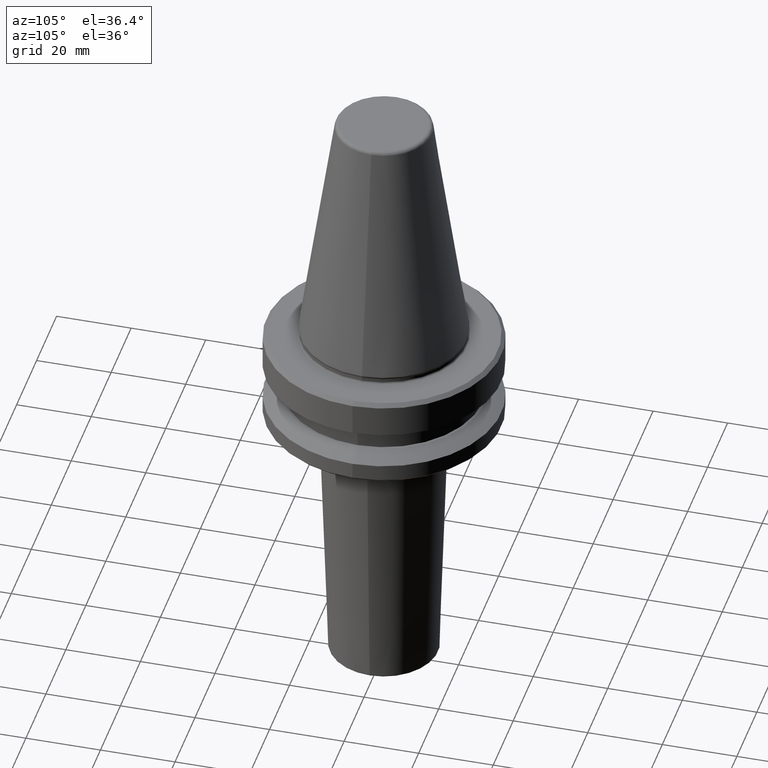
[diagram: clean part render]
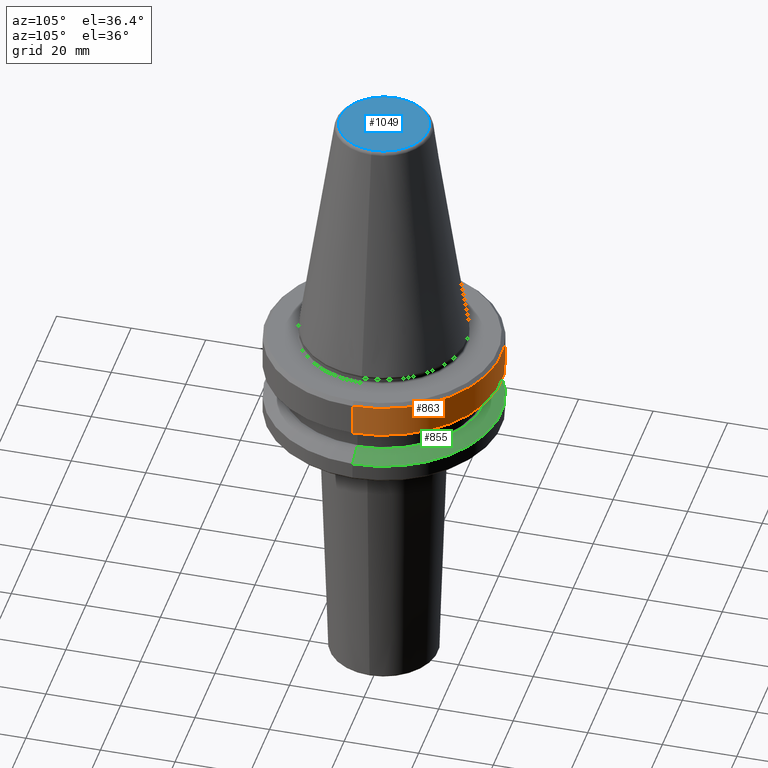
[diagram: same view with three faces highlighted in distinct colors, each labeled with its STEP entity id]
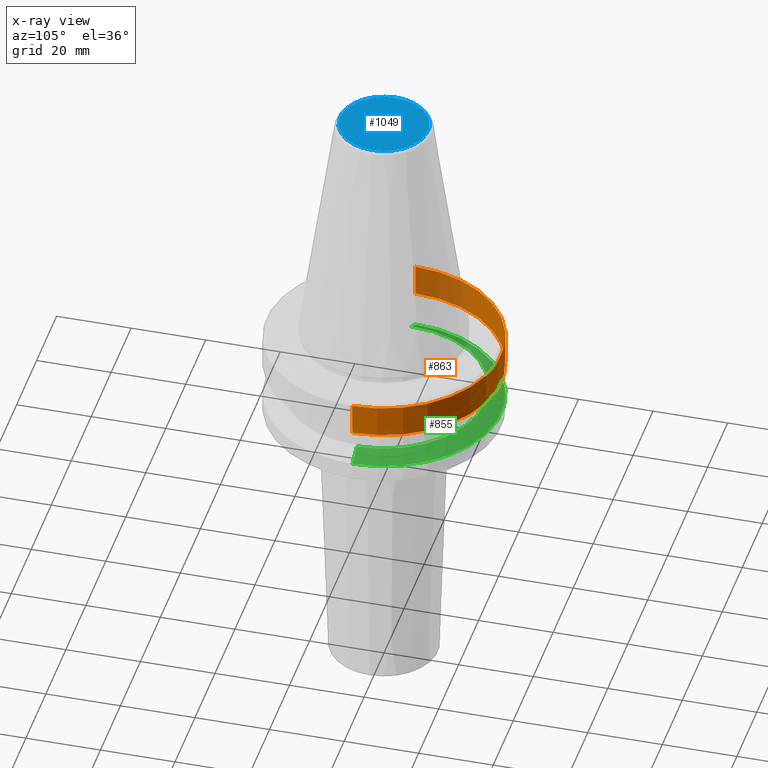
[diagram: x-ray of the same camera — body ghosted, the three highlighted faces saturated]
A machine part, auxiliary view with three faces highlighted in distinct colors.
The next image is the same camera in x-ray (body ghosted, the three faces saturated) — at least one of them is partly hidden behind the body in this view.
Their STEP definitions:

[orange] entity #863 — the highlighted cylindrical surface (partial cylindrical patch) has radius 31.5 mm, axis along (-0, -0, 1).
#34 = EDGE_CURVE ( 'NONE', #937, #657, #811, .T. ) ;
#61 = CARTESIAN_POINT ( 'NONE',  ( -31.50000000000008500, 3.857637417314172900E-015, 6.357346922996331500 ) ) ;
#65 = EDGE_CURVE ( 'NONE', #992, #718, #156, .T. ) ;
#77 = EDGE_CURVE ( 'NONE', #657, #718, #540, .T. ) ;
#156 = LINE ( 'NONE', #61, #331 ) ;
#166 = CARTESIAN_POINT ( 'NONE',  ( -31.50000000000008500, 3.857637417314172900E-015, -68.40000000000046000 ) ) ;
#264 = CYLINDRICAL_SURFACE ( 'NONE', #295, 31.50000000000008500 ) ;
#295 = AXIS2_PLACEMENT_3D ( 'NONE', #750, #435, #999 ) ;
#300 = DIRECTION ( 'NONE',  ( -0.0000000000000000000, -0.0000000000000000000, 1.000000000000000000 ) ) ;
#331 = VECTOR ( 'NONE', #789, 1000.000000000000000 ) ;
#333 = AXIS2_PLACEMENT_3D ( 'NONE', #880, #389, #956 ) ;
#366 = CARTESIAN_POINT ( 'NONE',  ( -31.50000000000008500, 3.857637417314172900E-015, -76.99985799368391800 ) ) ;
#389 = DIRECTION ( 'NONE',  ( -0.0000000000000000000, -0.0000000000000000000, 1.000000000000000000 ) ) ;
#430 = EDGE_CURVE ( 'NONE', #937, #992, #545, .T. ) ;
#435 = DIRECTION ( 'NONE',  ( -0.0000000000000000000, -0.0000000000000000000, 1.000000000000000000 ) ) ;
#463 = DIRECTION ( 'NONE',  ( -0.0000000000000000000, -0.0000000000000000000, 1.000000000000000000 ) ) ;
#468 = ORIENTED_EDGE ( 'NONE', *, *, #430, .T. ) ;
#526 = EDGE_LOOP ( 'NONE', ( #468, #683, #577, #705 ) ) ;
#531 = CARTESIAN_POINT ( 'NONE',  ( 31.50000000000008500, 0.0000000000000000000, 6.357346922996331500 ) ) ;
#540 = CIRCLE ( 'NONE', #764, 31.50000000000008500 ) ;
#545 = CIRCLE ( 'NONE', #333, 31.50000000000008500 ) ;
#566 = VECTOR ( 'NONE', #300, 1000.000000000000000 ) ;
#577 = ORIENTED_EDGE ( 'NONE', *, *, #77, .F. ) ;
#657 = VERTEX_POINT ( 'NONE', #770 ) ;
#662 = FACE_OUTER_BOUND ( 'NONE', #526, .T. ) ;
#683 = ORIENTED_EDGE ( 'NONE', *, *, #65, .T. ) ;
#705 = ORIENTED_EDGE ( 'NONE', *, *, #34, .F. ) ;
#718 = VERTEX_POINT ( 'NONE', #166 ) ;
#750 = CARTESIAN_POINT ( 'NONE',  ( 0.0000000000000000000, 0.0000000000000000000, 6.357346922996331500 ) ) ;
#764 = AXIS2_PLACEMENT_3D ( 'NONE', #942, #463, #1025 ) ;
#770 = CARTESIAN_POINT ( 'NONE',  ( 31.50000000000008500, 0.0000000000000000000, -68.40000000000046000 ) ) ;
#789 = DIRECTION ( 'NONE',  ( -0.0000000000000000000, -0.0000000000000000000, 1.000000000000000000 ) ) ;
#811 = LINE ( 'NONE', #531, #566 ) ;
#852 = CARTESIAN_POINT ( 'NONE',  ( 31.50000000000008500, 0.0000000000000000000, -76.99985799368391800 ) ) ;
#863 = ADVANCED_FACE ( 'NONE', ( #662 ), #264, .T. ) ;
#880 = CARTESIAN_POINT ( 'NONE',  ( 0.0000000000000000000, 0.0000000000000000000, -76.99985799368391800 ) ) ;
#937 = VERTEX_POINT ( 'NONE', #852 ) ;
#942 = CARTESIAN_POINT ( 'NONE',  ( 0.0000000000000000000, 0.0000000000000000000, -68.40000000000046000 ) ) ;
#956 = DIRECTION ( 'NONE',  ( 1.000000000000000000, 0.0000000000000000000, 0.0000000000000000000 ) ) ;
#992 = VERTEX_POINT ( 'NONE', #366 ) ;
#999 = DIRECTION ( 'NONE',  ( 1.000000000000000000, 0.0000000000000000000, 0.0000000000000000000 ) ) ;
#1025 = DIRECTION ( 'NONE',  ( 1.000000000000000000, 0.0000000000000000000, 0.0000000000000000000 ) ) ;

[blue] entity #1049 — the highlighted planar face has unit normal (0, 0, -1).
#131 = ORIENTED_EDGE ( 'NONE', *, *, #998, .T. ) ;
#204 = CARTESIAN_POINT ( 'NONE',  ( 11.82266927716813000, 0.0000000000000000000, -4.440892098500626200E-013 ) ) ;
#231 = CARTESIAN_POINT ( 'NONE',  ( 0.0000000000000000000, 0.0000000000000000000, -4.440892098500626200E-013 ) ) ;
#303 = CARTESIAN_POINT ( 'NONE',  ( 0.0000000000000000000, 0.0000000000000000000, -4.440892098500626200E-013 ) ) ;
#317 = DIRECTION ( 'NONE',  ( 1.000000000000000000, 0.0000000000000000000, 0.0000000000000000000 ) ) ;
#319 = CARTESIAN_POINT ( 'NONE',  ( -11.82266927716813000, 1.508450817090336800E-015, -4.440892098500626200E-013 ) ) ;
#356 = PLANE ( 'NONE',  #986 ) ;
#369 = CIRCLE ( 'NONE', #666, 11.82266927716813000 ) ;
#372 = EDGE_LOOP ( 'NONE', ( #810, #131 ) ) ;
#375 = DIRECTION ( 'NONE',  ( 1.000000000000000000, 0.0000000000000000000, 0.0000000000000000000 ) ) ;
#441 = DIRECTION ( 'NONE',  ( 0.0000000000000000000, 0.0000000000000000000, -1.000000000000000000 ) ) ;
#442 = VERTEX_POINT ( 'NONE', #319 ) ;
#497 = EDGE_CURVE ( 'NONE', #627, #442, #763, .T. ) ;
#521 = FACE_OUTER_BOUND ( 'NONE', #372, .T. ) ;
#627 = VERTEX_POINT ( 'NONE', #204 ) ;
#653 = AXIS2_PLACEMENT_3D ( 'NONE', #231, #798, #317 ) ;
#666 = AXIS2_PLACEMENT_3D ( 'NONE', #303, #864, #375 ) ;
#763 = CIRCLE ( 'NONE', #653, 11.82266927716813000 ) ;
#798 = DIRECTION ( 'NONE',  ( -0.0000000000000000000, -0.0000000000000000000, 1.000000000000000000 ) ) ;
#810 = ORIENTED_EDGE ( 'NONE', *, *, #497, .T. ) ;
#864 = DIRECTION ( 'NONE',  ( -0.0000000000000000000, -0.0000000000000000000, 1.000000000000000000 ) ) ;
#916 = CARTESIAN_POINT ( 'NONE',  ( 0.0000000000000000000, 0.0000000000000000000, -4.440892098500626200E-013 ) ) ;
#986 = AXIS2_PLACEMENT_3D ( 'NONE', #916, #441, #1002 ) ;
#998 = EDGE_CURVE ( 'NONE', #442, #627, #369, .T. ) ;
#1002 = DIRECTION ( 'NONE',  ( -1.000000000000000000, 0.0000000000000000000, -0.0000000000000000000 ) ) ;
#1049 = ADVANCED_FACE ( 'NONE', ( #521 ), #356, .F. ) ;

[green] entity #855 — the highlighted conical surface has half-angle 60 deg.
#7 = CARTESIAN_POINT ( 'NONE',  ( -31.50000000000008500, 3.857637417314172900E-015, -87.00014200631733300 ) ) ;
#9 = CONICAL_SURFACE ( 'NONE', #71, 31.50000000000008500, 1.047197551196587000 ) ;
#37 = FACE_OUTER_BOUND ( 'NONE', #573, .T. ) ;
#71 = AXIS2_PLACEMENT_3D ( 'NONE', #670, #186, #508 ) ;
#102 = CARTESIAN_POINT ( 'NONE',  ( -27.16962701892256100, 0.0000000000000000000, -84.50000000000068200 ) ) ;
#118 = CIRCLE ( 'NONE', #819, 31.50000000000008500 ) ;
#139 = CARTESIAN_POINT ( 'NONE',  ( 31.50000000000008500, 0.0000000000000000000, -87.00014200631733300 ) ) ;
#186 = DIRECTION ( 'NONE',  ( 0.0000000000000000000, 0.0000000000000000000, -1.000000000000000000 ) ) ;
#194 = VERTEX_POINT ( 'NONE', #139 ) ;
#201 = DIRECTION ( 'NONE',  ( 0.8660254037844332700, 1.060575238724900300E-016, -0.5000000000000093300 ) ) ;
#205 = CARTESIAN_POINT ( 'NONE',  ( 0.0000000000000000000, 0.0000000000000000000, -84.50000000000068200 ) ) ;
#208 = ORIENTED_EDGE ( 'NONE', *, *, #212, .F. ) ;
#212 = EDGE_CURVE ( 'NONE', #821, #432, #841, .T. ) ;
#266 = EDGE_CURVE ( 'NONE', #674, #821, #429, .T. ) ;
#298 = DIRECTION ( 'NONE',  ( 1.000000000000000000, 0.0000000000000000000, 0.0000000000000000000 ) ) ;
#320 = ORIENTED_EDGE ( 'NONE', *, *, #266, .F. ) ;
#322 = CARTESIAN_POINT ( 'NONE',  ( 0.0000000000000000000, 0.0000000000000000000, -87.00014200631733300 ) ) ;
#392 = DIRECTION ( 'NONE',  ( 1.000000000000000000, 0.0000000000000000000, 0.0000000000000000000 ) ) ;
#429 = CIRCLE ( 'NONE', #509, 27.16962701892256100 ) ;
#432 = VERTEX_POINT ( 'NONE', #7 ) ;
#508 = DIRECTION ( 'NONE',  ( -1.000000000000000000, 0.0000000000000000000, 0.0000000000000000000 ) ) ;
#509 = AXIS2_PLACEMENT_3D ( 'NONE', #205, #771, #298 ) ;
#535 = CARTESIAN_POINT ( 'NONE',  ( 27.16962701892256100, 3.592478546794633900E-015, -84.50000000000068200 ) ) ;
#550 = EDGE_CURVE ( 'NONE', #194, #432, #118, .T. ) ;
#573 = EDGE_LOOP ( 'NONE', ( #320, #813, #699, #208 ) ) ;
#615 = EDGE_CURVE ( 'NONE', #674, #194, #922, .T. ) ;
#670 = CARTESIAN_POINT ( 'NONE',  ( 0.0000000000000000000, 0.0000000000000000000, -87.00014200631733300 ) ) ;
#674 = VERTEX_POINT ( 'NONE', #535 ) ;
#699 = ORIENTED_EDGE ( 'NONE', *, *, #550, .T. ) ;
#709 = CARTESIAN_POINT ( 'NONE',  ( -31.50000000000008500, 0.0000000000000000000, -87.00014200631733300 ) ) ;
#739 = VECTOR ( 'NONE', #201, 1000.000000000000000 ) ;
#768 = CARTESIAN_POINT ( 'NONE',  ( 31.50000000000008500, 3.857637417314172900E-015, -87.00014200631733300 ) ) ;
#771 = DIRECTION ( 'NONE',  ( -0.0000000000000000000, -0.0000000000000000000, 1.000000000000000000 ) ) ;
#792 = DIRECTION ( 'NONE',  ( -0.8660254037844332700, 0.0000000000000000000, -0.5000000000000093300 ) ) ;
#813 = ORIENTED_EDGE ( 'NONE', *, *, #615, .T. ) ;
#819 = AXIS2_PLACEMENT_3D ( 'NONE', #322, #883, #392 ) ;
#821 = VERTEX_POINT ( 'NONE', #102 ) ;
#841 = LINE ( 'NONE', #709, #997 ) ;
#855 = ADVANCED_FACE ( 'NONE', ( #37 ), #9, .T. ) ;
#883 = DIRECTION ( 'NONE',  ( -0.0000000000000000000, -0.0000000000000000000, 1.000000000000000000 ) ) ;
#922 = LINE ( 'NONE', #768, #739 ) ;
#997 = VECTOR ( 'NONE', #792, 1000.000000000000000 ) ;